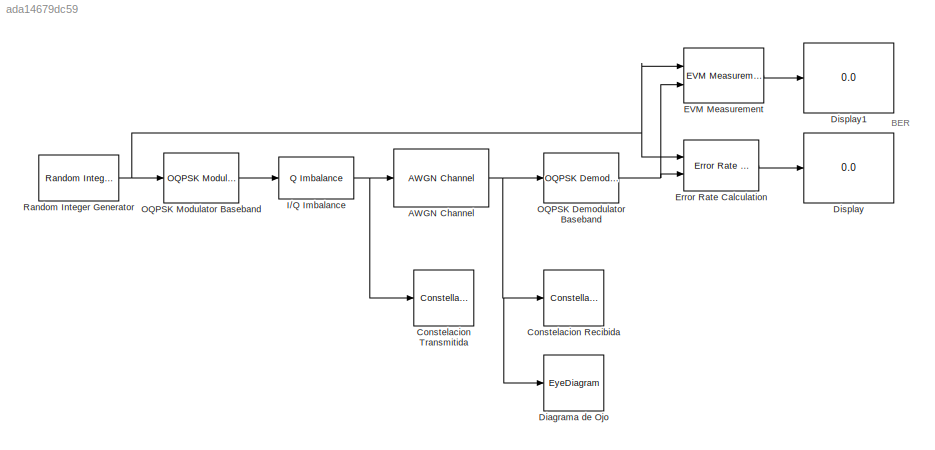
MODEL slx_ada14679dc59
KIND model
CONFIG AbsTol = auto
CONFIG EnableMultiTasking = off
CONFIG FixedStep = auto
CONFIG MaxStep = auto
CONFIG MinStep = auto
CONFIG RelTol = 1e-3
CONFIG SampleTimeConstraint = Unconstrained
CONFIG Solver = VariableStepAuto
CONFIG SolverName = VariableStepAuto
CONFIG StartTime = 0.0
CONFIG StopTime = 10.0
BLOCK [Reference] AWGN Channel  REF=commchan3/AWGN
Channel
  Ports = [1, 1]
  SourceBlock = commchan3/AWGN\nChannel
  SourceProductBaseCode = CM
  SourceProductName = Communications System Toolbox
  SourceType = AWGN Channel
  UserDataPersistent = on
BLOCK [ConstellationDiagram] Constelacion Recibida 
  Ports = [1]
  ScopeSpecificationString = comm.scopes.ConstellationDiagramBlockCfg('CurrentConfiguration', extmgr.ConfigurationSet(extmgr.Configuration('Core','General UI',true),extmgr.Configuration('Core','Source UI',true),extmgr.Configuration('Sources','WiredSimulink',true),extmgr.Configuration('Visuals','Constellation',true,'AxesProperties',struct('Color',[0 0 0],'XColor',[0.686274509803922 0.686274509803922 0.686274509803922],'YColor'...<+798ch>
BLOCK [ConstellationDiagram] Constelacion Transmitida
  Ports = [1]
  ScopeSpecificationString = comm.scopes.ConstellationDiagramBlockCfg('CurrentConfiguration', extmgr.ConfigurationSet(extmgr.Configuration('Core','General UI',true),extmgr.Configuration('Core','Source UI',true),extmgr.Configuration('Sources','WiredSimulink',true),extmgr.Configuration('Visuals','Constellation',true,'AxesProperties',struct('Color',[0 0 0],'XColor',[0.686274509803922 0.686274509803922 0.686274509803922],'YColor'...<+729ch>
BLOCK [EyeDiagram] Diagrama de Ojo 
  Ports = [1]
  ScopeSpecificationString = comm.scopes.EyeDiagramBlockCfg('CurrentConfiguration', extmgr.ConfigurationSet(extmgr.Configuration('Core','General UI',true),extmgr.Configuration('Core','Source UI',true),extmgr.Configuration('Sources','WiredSimulink',true),extmgr.Configuration('Sources','Streaming',false),extmgr.Configuration('Sources','SPTool',false),extmgr.Configuration('Sources','Workspace',false),extmgr.Configuration('Source...<+2245ch>
BLOCK [Display] Display
  Decimation = 1
  Ports = [1]
BLOCK [Display] Display1
  Decimation = 1
  Ports = [1]
BLOCK [Reference] EVM Measurement  REF=commutil2/EVM Measurement
  Ports = [2, 1]
  SourceBlock = commutil2/EVM Measurement
  SourceProductBaseCode = CM
  SourceProductName = Communications System Toolbox
  SourceType = EVM Measurement
BLOCK [Reference] Error Rate Calculation  REF=commsink2/Error Rate
Calculation
  Ports = [2, 1]
  SourceBlock = commsink2/Error Rate\nCalculation
  SourceProductBaseCode = CM
  SourceProductName = Communications System Toolbox
  SourceType = Error Rate Calculation
BLOCK [Reference] I//Q Imbalance  REF=commrflib2/I//Q
Imbalance
  Ports = [1, 1]
  SourceBlock = commrflib2/I//Q\nImbalance
  SourceProductBaseCode = CM
  SourceProductName = Communications System Toolbox
  SourceType = I/Q Imbalance
BLOCK [Reference] OQPSK Demodulator Baseband  REF=commdigbbndpm3/OQPSK
Demodulator
Baseband
  Ports = [1, 1]
  SourceBlock = commdigbbndpm3/OQPSK\nDemodulator\nBaseband
  SourceProductBaseCode = CM
  SourceProductName = Communications System Toolbox
  SourceType = OQPSK Demodulator Baseband
  UserDataPersistent = on
BLOCK [Reference] OQPSK Modulator Baseband  REF=commdigbbndpm3/OQPSK
Modulator
Baseband
  Ports = [1, 1]
  SourceBlock = commdigbbndpm3/OQPSK\nModulator\nBaseband
  SourceProductBaseCode = CM
  SourceProductName = Communications System Toolbox
  SourceType = OQPSK Modulator Baseband
  UserDataPersistent = on
BLOCK [Reference] Random Integer Generator  REF=commrandsrc3/Random Integer
Generator
  Ports = [0, 1]
  SourceBlock = commrandsrc3/Random Integer\nGenerator
  SourceProductBaseCode = CM
  SourceProductName = Communications System Toolbox
  SourceType = Random Integer Generator
ANNOTATION (root): BER
NET AWGN Channel:1 -> Constelacion Recibida :1, Diagrama de Ojo :1, OQPSK Demodulator Baseband:1
LINE EVM Measurement:1 -> Display1:1
LINE Error Rate Calculation:1 -> Display:1
NET I//Q Imbalance:1 -> AWGN Channel:1, Constelacion Transmitida:1
NET OQPSK Demodulator Baseband:1 -> EVM Measurement:2, Error Rate Calculation:2
LINE OQPSK Modulator Baseband:1 -> I//Q Imbalance:1
NET Random Integer Generator:1 -> EVM Measurement:1, Error Rate Calculation:1, OQPSK Modulator Baseband:1
note: NET lines group one-source signal fan-out (src -> all destinations, sorted); 1:1 wires keep LINE
